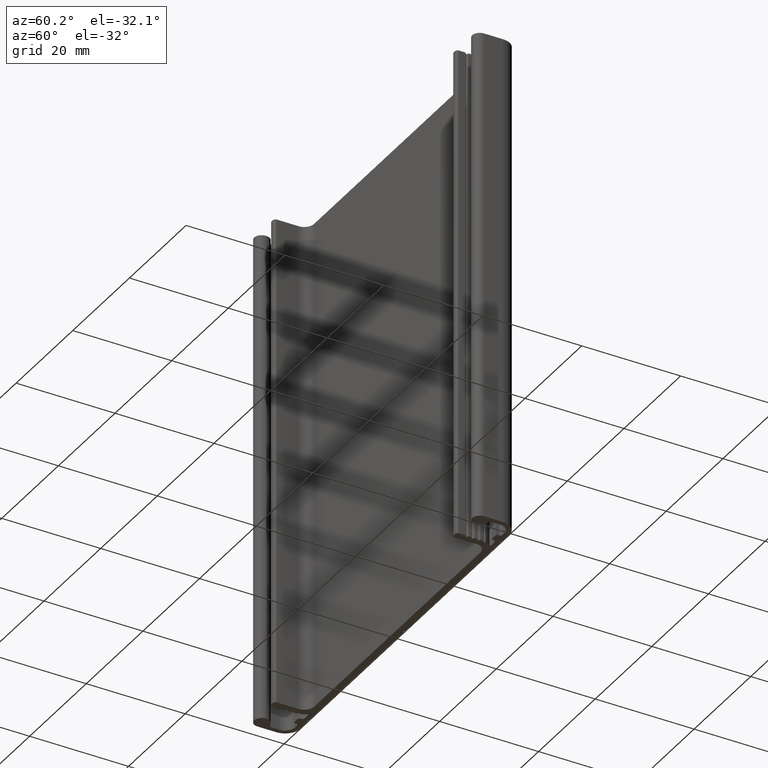
[diagram: clean part render]
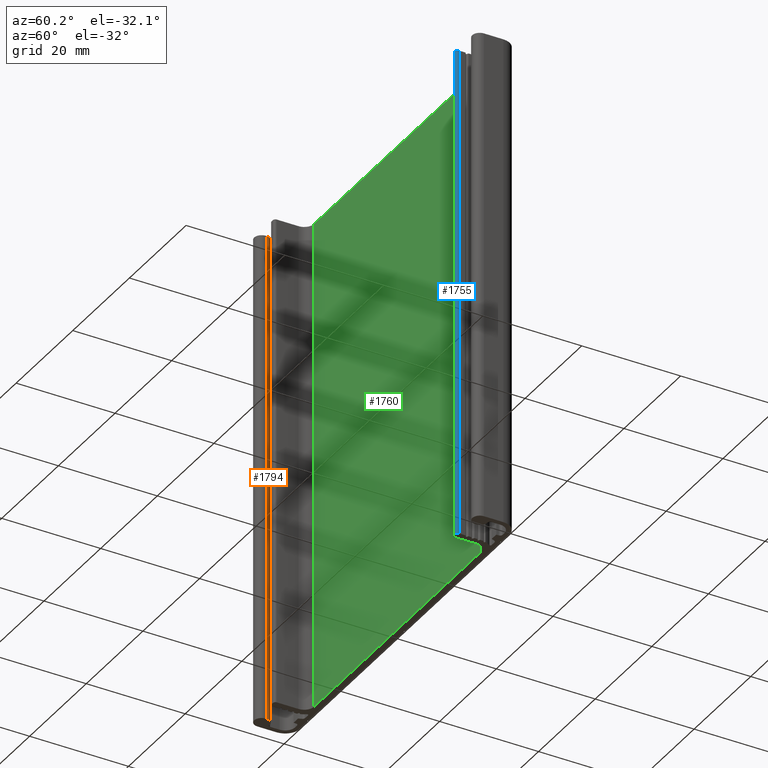
[diagram: same view with three faces highlighted in distinct colors, each labeled with its STEP entity id]
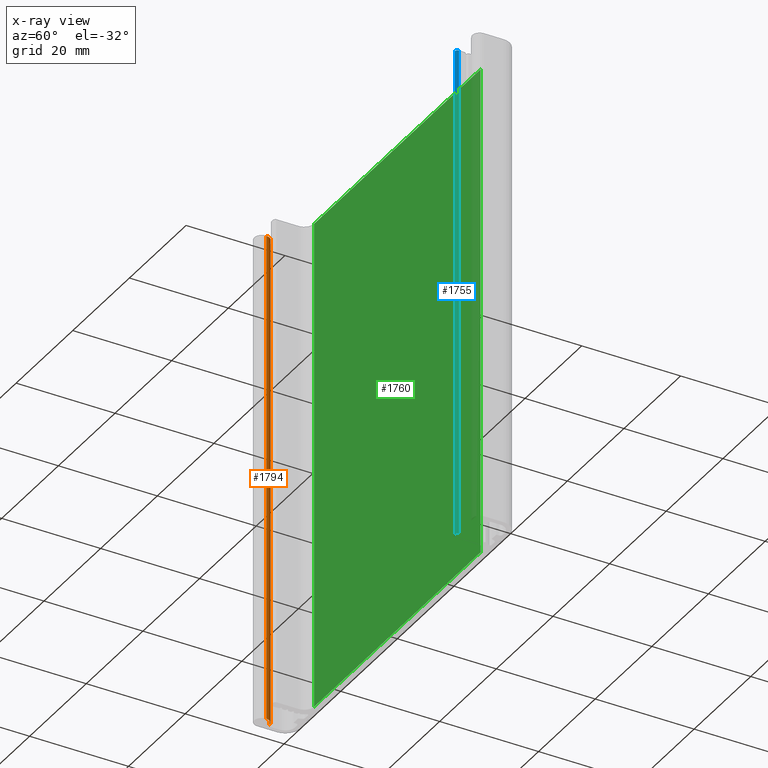
[diagram: x-ray of the same camera — body ghosted, the three highlighted faces saturated]
A machine part, auxiliary view with three faces highlighted in distinct colors.
The next image is the same camera in x-ray (body ghosted, the three faces saturated) — at least one of them is partly hidden behind the body in this view.
Their STEP definitions:

[orange] entity #1794 — the highlighted cylindrical surface (edge-blend (fillet) strip) has radius 1.5 mm, axis along (0, 0, 1).
#57=CIRCLE('',#1931,1.49999999999999);
#58=CIRCLE('',#1932,1.49999999999999);
#114=CYLINDRICAL_SURFACE('',#1930,1.49999999999999);
#183=FACE_OUTER_BOUND('',#275,.T.);
#275=EDGE_LOOP('',(#1354,#1355,#1356,#1357));
#427=LINE('',#2850,#619);
#428=LINE('',#2856,#620);
#619=VECTOR('',#2306,100.);
#620=VECTOR('',#2313,100.);
#802=VERTEX_POINT('',#2846);
#803=VERTEX_POINT('',#2848);
#804=VERTEX_POINT('',#2852);
#805=VERTEX_POINT('',#2854);
#1033=EDGE_CURVE('',#802,#803,#427,.T.);
#1034=EDGE_CURVE('',#804,#802,#57,.T.);
#1035=EDGE_CURVE('',#805,#803,#58,.T.);
#1036=EDGE_CURVE('',#804,#805,#428,.T.);
#1354=ORIENTED_EDGE('',*,*,#1034,.T.);
#1355=ORIENTED_EDGE('',*,*,#1033,.T.);
#1356=ORIENTED_EDGE('',*,*,#1035,.F.);
#1357=ORIENTED_EDGE('',*,*,#1036,.F.);
#1794=ADVANCED_FACE('',(#183),#114,.T.);
#1930=AXIS2_PLACEMENT_3D('',#2851,#2307,#2308);
#1931=AXIS2_PLACEMENT_3D('',#2853,#2309,#2310);
#1932=AXIS2_PLACEMENT_3D('',#2855,#2311,#2312);
#2306=DIRECTION('',(0.,0.,1.));
#2307=DIRECTION('center_axis',(0.,0.,1.));
#2308=DIRECTION('ref_axis',(1.,-6.66133814775098E-15,0.));
#2309=DIRECTION('center_axis',(0.,0.,1.));
#2310=DIRECTION('ref_axis',(1.,-6.66133814775098E-15,0.));
#2311=DIRECTION('center_axis',(0.,0.,1.));
#2312=DIRECTION('ref_axis',(1.,-6.66133814775098E-15,0.));
#2313=DIRECTION('',(0.,0.,1.));
#2846=CARTESIAN_POINT('',(-38.49999999,-3.79999997,0.));
#2848=CARTESIAN_POINT('',(-38.49999999,-3.79999997,100.));
#2850=CARTESIAN_POINT('',(-38.49999999,-3.79999997,0.));
#2851=CARTESIAN_POINT('Origin',(-38.49999999,-5.29999996999999,0.));
#2852=CARTESIAN_POINT('',(-36.99999999,-5.29999997,0.));
#2853=CARTESIAN_POINT('Origin',(-38.49999999,-5.29999996999999,0.));
#2854=CARTESIAN_POINT('',(-36.99999999,-5.29999997,100.));
#2855=CARTESIAN_POINT('Origin',(-38.49999999,-5.29999996999999,100.));
#2856=CARTESIAN_POINT('',(-36.99999999,-5.29999997,0.));

[blue] entity #1755 — the highlighted cylindrical surface (edge-blend (fillet) strip) has radius 0.5 mm, axis along (0, 0, 1).
#21=CIRCLE('',#1856,0.500000000000001);
#22=CIRCLE('',#1857,0.500000000000001);
#96=CYLINDRICAL_SURFACE('',#1855,0.500000000000001);
#144=FACE_OUTER_BOUND('',#236,.T.);
#236=EDGE_LOOP('',(#1198,#1199,#1200,#1201));
#346=LINE('',#2616,#538);
#347=LINE('',#2622,#539);
#538=VECTOR('',#2075,100.);
#539=VECTOR('',#2082,100.);
#724=VERTEX_POINT('',#2612);
#725=VERTEX_POINT('',#2614);
#726=VERTEX_POINT('',#2618);
#727=VERTEX_POINT('',#2620);
#916=EDGE_CURVE('',#724,#725,#346,.T.);
#917=EDGE_CURVE('',#726,#724,#21,.T.);
#918=EDGE_CURVE('',#727,#725,#22,.T.);
#919=EDGE_CURVE('',#726,#727,#347,.T.);
#1198=ORIENTED_EDGE('',*,*,#917,.T.);
#1199=ORIENTED_EDGE('',*,*,#916,.T.);
#1200=ORIENTED_EDGE('',*,*,#918,.F.);
#1201=ORIENTED_EDGE('',*,*,#919,.F.);
#1755=ADVANCED_FACE('',(#144),#96,.T.);
#1855=AXIS2_PLACEMENT_3D('',#2617,#2076,#2077);
#1856=AXIS2_PLACEMENT_3D('',#2619,#2078,#2079);
#1857=AXIS2_PLACEMENT_3D('',#2621,#2080,#2081);
#2075=DIRECTION('',(0.,0.,1.));
#2076=DIRECTION('center_axis',(0.,0.,1.));
#2077=DIRECTION('ref_axis',(0.,-1.,0.));
#2078=DIRECTION('center_axis',(0.,0.,1.));
#2079=DIRECTION('ref_axis',(0.,-1.,0.));
#2080=DIRECTION('center_axis',(0.,0.,1.));
#2081=DIRECTION('ref_axis',(0.,-1.,0.));
#2082=DIRECTION('',(0.,0.,1.));
#2612=CARTESIAN_POINT('',(32.9000000035076,-6.40000000069073,0.));
#2614=CARTESIAN_POINT('',(32.9000000035076,-6.40000000069073,100.));
#2616=CARTESIAN_POINT('',(32.9000000035076,-6.40000000069073,0.));
#2617=CARTESIAN_POINT('Origin',(32.4000000035076,-6.40000000069073,0.));
#2618=CARTESIAN_POINT('',(32.4000000035076,-6.90000000069073,0.));
#2619=CARTESIAN_POINT('Origin',(32.4000000035076,-6.40000000069073,0.));
#2620=CARTESIAN_POINT('',(32.4000000035076,-6.90000000069073,100.));
#2621=CARTESIAN_POINT('Origin',(32.4000000035076,-6.40000000069073,100.));
#2622=CARTESIAN_POINT('',(32.4000000035076,-6.90000000069073,0.));

[green] entity #1760 — the highlighted planar face has unit normal (0, -1, 0).
#149=FACE_OUTER_BOUND('',#241,.T.);
#241=EDGE_LOOP('',(#1218,#1219,#1220,#1221));
#355=LINE('',#2646,#547);
#356=LINE('',#2649,#548);
#357=LINE('',#2651,#549);
#358=LINE('',#2652,#550);
#547=VECTOR('',#2106,100.);
#548=VECTOR('',#2109,58.8);
#549=VECTOR('',#2110,58.8);
#550=VECTOR('',#2111,100.);
#734=VERTEX_POINT('',#2642);
#735=VERTEX_POINT('',#2644);
#736=VERTEX_POINT('',#2648);
#737=VERTEX_POINT('',#2650);
#931=EDGE_CURVE('',#734,#735,#355,.T.);
#932=EDGE_CURVE('',#736,#734,#356,.T.);
#933=EDGE_CURVE('',#737,#735,#357,.T.);
#934=EDGE_CURVE('',#736,#737,#358,.T.);
#1218=ORIENTED_EDGE('',*,*,#932,.T.);
#1219=ORIENTED_EDGE('',*,*,#931,.T.);
#1220=ORIENTED_EDGE('',*,*,#933,.F.);
#1221=ORIENTED_EDGE('',*,*,#934,.F.);
#1701=PLANE('',#1866);
#1760=ADVANCED_FACE('',(#149),#1701,.T.);
#1866=AXIS2_PLACEMENT_3D('',#2647,#2107,#2108);
#2106=DIRECTION('',(0.,0.,1.));
#2107=DIRECTION('center_axis',(4.24830239014728E-17,-1.,0.));
#2108=DIRECTION('ref_axis',(1.,4.24830238995737E-17,0.));
#2109=DIRECTION('',(1.,4.24830239014728E-17,0.));
#2110=DIRECTION('',(1.,4.24830239014728E-17,0.));
#2111=DIRECTION('',(0.,0.,1.));
#2642=CARTESIAN_POINT('',(29.4000000035076,-6.90723034324492E-10,0.));
#2644=CARTESIAN_POINT('',(29.4000000035076,-6.90723034324492E-10,100.));
#2646=CARTESIAN_POINT('',(29.4000000035076,-6.90723034324492E-10,0.));
#2647=CARTESIAN_POINT('Origin',(-29.3999999964924,-6.90725532326297E-10,
0.));
#2648=CARTESIAN_POINT('',(-29.3999999964924,-6.90725532326297E-10,0.));
#2649=CARTESIAN_POINT('',(-29.3999999964924,-6.90725532326297E-10,0.));
#2650=CARTESIAN_POINT('',(-29.3999999964924,-6.90725532326297E-10,100.));
#2651=CARTESIAN_POINT('',(-29.3999999964924,-6.90725532326297E-10,100.));
#2652=CARTESIAN_POINT('',(-29.3999999964924,-6.90725532326297E-10,0.));